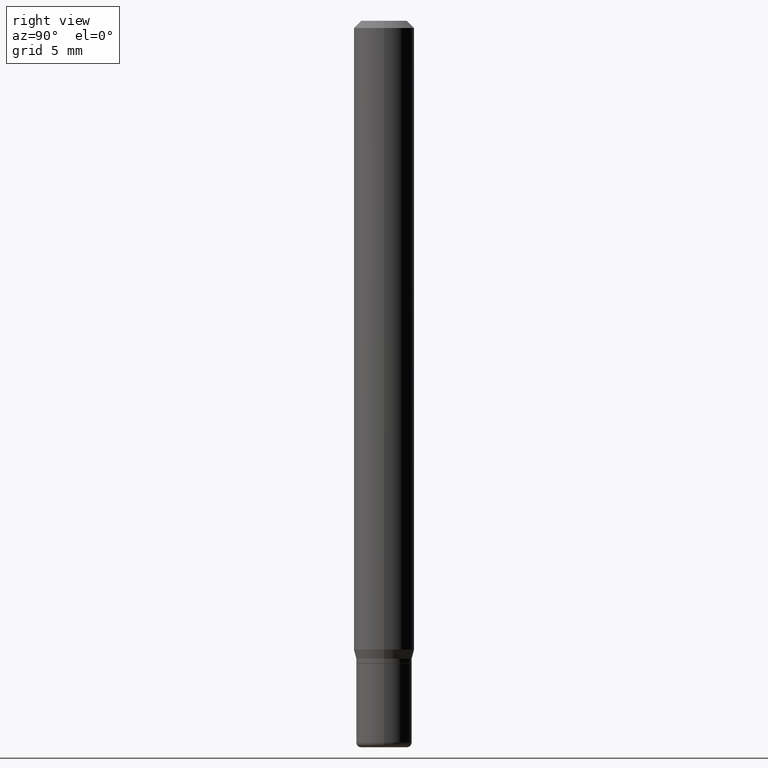
[diagram: clean part render]
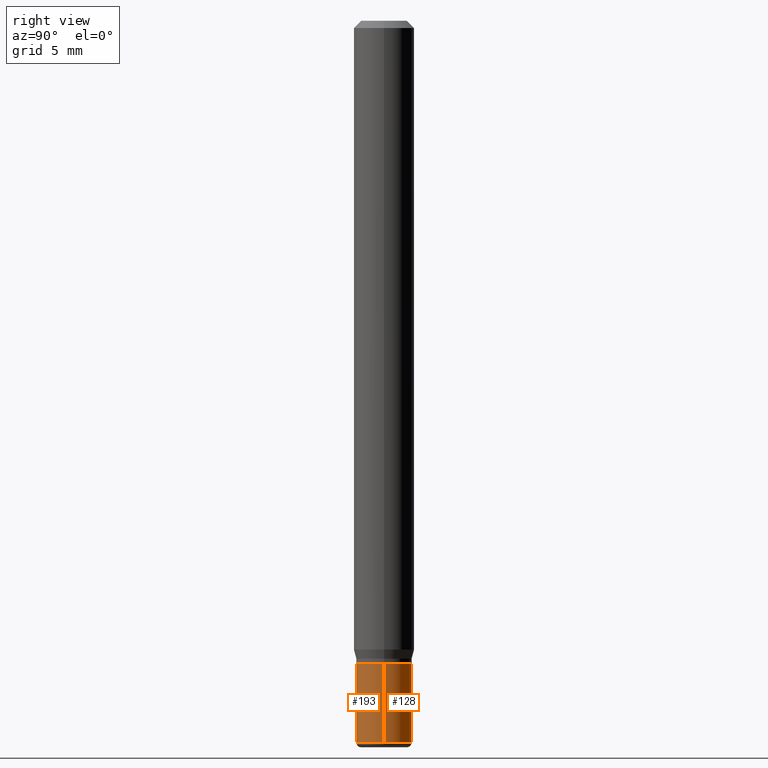
[diagram: same view with one multi-face feature highlighted, each face labeled with its STEP entity id]
A machine part, right view. The highlighted faces form ONE feature: a constant-radius fillet chain: 2 tangent blend faces with common blend radius 1.4605 mm. The faces share edges in the B-rep.
Their STEP definitions:
[1] entity #193 (Cylinder):
#15 = ORIENTED_EDGE ( 'NONE', *, *, #280, .F. ) ;
#17 = FACE_OUTER_BOUND ( 'NONE', #75, .T. ) ;
#31 = LINE ( 'NONE', #347, #239 ) ;
#44 = CIRCLE ( 'NONE', #176, 0.05750000000000000250 ) ;
#56 = DIRECTION ( 'NONE',  ( -2.445468806185136597E-29, 3.491481338843145583E-15, 1.000000000000000000 ) ) ;
#67 = DIRECTION ( 'NONE',  ( -2.445468806185136877E-29, 3.491481338843145188E-15, 1.000000000000000000 ) ) ;
#73 = ORIENTED_EDGE ( 'NONE', *, *, #504, .T. ) ;
#75 = EDGE_LOOP ( 'NONE', ( #109, #73, #368, #15 ) ) ;
#82 = DIRECTION ( 'NONE',  ( -2.445468806185136597E-29, 3.491481338843145583E-15, 1.000000000000000000 ) ) ;
#109 = ORIENTED_EDGE ( 'NONE', *, *, #379, .F. ) ;
#123 = CIRCLE ( 'NONE', #402, 0.05749999999999994699 ) ;
#129 = VERTEX_POINT ( 'NONE', #503 ) ;
#134 = CYLINDRICAL_SURFACE ( 'NONE', #392, 0.05749999999999997474 ) ;
#145 = LINE ( 'NONE', #389, #326 ) ;
#158 = VERTEX_POINT ( 'NONE', #373 ) ;
#176 = AXIS2_PLACEMENT_3D ( 'NONE', #428, #311, #226 ) ;
#193 = ADVANCED_FACE ( 'NONE', ( #17 ), #134, .T. ) ;
#215 = DIRECTION ( 'NONE',  ( 1.000000000000000000, -6.982962677686267499E-15, 4.876176775795936353E-29 ) ) ;
#226 = DIRECTION ( 'NONE',  ( 1.000000000000000000, -6.982962677686273810E-15, 0.000000000000000000 ) ) ;
#239 = VECTOR ( 'NONE', #67, 39.37007874015748143 ) ;
#259 = EDGE_CURVE ( 'NONE', #158, #129, #145, .T. ) ;
#280 = EDGE_CURVE ( 'NONE', #366, #129, #44, .T. ) ;
#286 = CARTESIAN_POINT ( 'NONE',  ( -0.05749999999999994699, -4.510062263033223973E-15, -1.490000000000000213 ) ) ;
#296 = CARTESIAN_POINT ( 'NONE',  ( 0.000000000000000000, 0.000000000000000000, 0.000000000000000000 ) ) ;
#305 = DIRECTION ( 'NONE',  ( -2.445468806185136877E-29, 3.491481338843145188E-15, 1.000000000000000000 ) ) ;
#311 = DIRECTION ( 'NONE',  ( -2.445468806185136597E-29, 3.491481338843145583E-15, 1.000000000000000000 ) ) ;
#326 = VECTOR ( 'NONE', #305, 39.37007874015748143 ) ;
#347 = CARTESIAN_POINT ( 'NONE',  ( -0.05749999999999997474, 4.085620730620574274E-16, -2.828387676896569661E-30 ) ) ;
#353 = CARTESIAN_POINT ( 'NONE',  ( 3.643748521215853910E-29, -5.202307194876288105E-15, -1.490000000000000213 ) ) ;
#366 = VERTEX_POINT ( 'NONE', #432 ) ;
#368 = ORIENTED_EDGE ( 'NONE', *, *, #259, .T. ) ;
#373 = CARTESIAN_POINT ( 'NONE',  ( 0.05749999999999994699, -5.603827548843247337E-15, -1.490000000000000213 ) ) ;
#379 = EDGE_CURVE ( 'NONE', #499, #366, #31, .T. ) ;
#389 = CARTESIAN_POINT ( 'NONE',  ( 0.05749999999999997474, -4.015203539669602175E-16, 2.803801646082662240E-30 ) ) ;
#392 = AXIS2_PLACEMENT_3D ( 'NONE', #296, #56, #215 ) ;
#402 = AXIS2_PLACEMENT_3D ( 'NONE', #353, #82, #487 ) ;
#428 = CARTESIAN_POINT ( 'NONE',  ( 3.246359840210769662E-29, -4.634941477314276569E-15, -1.327500000000000346 ) ) ;
#432 = CARTESIAN_POINT ( 'NONE',  ( -0.05750000000000000250, -4.510062263033223973E-15, -1.327500000000000346 ) ) ;
#487 = DIRECTION ( 'NONE',  ( 1.000000000000000000, -6.982962677686263555E-15, 0.000000000000000000 ) ) ;
#499 = VERTEX_POINT ( 'NONE', #286 ) ;
#503 = CARTESIAN_POINT ( 'NONE',  ( 0.05750000000000000250, -5.036461831281237378E-15, -1.327500000000000346 ) ) ;
#504 = EDGE_CURVE ( 'NONE', #499, #158, #123, .T. ) ;
[2] entity #128 (Cylinder):
#11 = CIRCLE ( 'NONE', #479, 0.05749999999999994699 ) ;
#19 = DIRECTION ( 'NONE',  ( -2.445468806185136597E-29, 3.491481338843145583E-15, 1.000000000000000000 ) ) ;
#31 = LINE ( 'NONE', #347, #239 ) ;
#41 = ORIENTED_EDGE ( 'NONE', *, *, #197, .T. ) ;
#61 = CARTESIAN_POINT ( 'NONE',  ( 0.000000000000000000, 0.000000000000000000, 0.000000000000000000 ) ) ;
#63 = FACE_OUTER_BOUND ( 'NONE', #256, .T. ) ;
#67 = DIRECTION ( 'NONE',  ( -2.445468806185136877E-29, 3.491481338843145188E-15, 1.000000000000000000 ) ) ;
#100 = AXIS2_PLACEMENT_3D ( 'NONE', #61, #416, #498 ) ;
#102 = CYLINDRICAL_SURFACE ( 'NONE', #100, 0.05749999999999997474 ) ;
#128 = ADVANCED_FACE ( 'NONE', ( #63 ), #102, .T. ) ;
#129 = VERTEX_POINT ( 'NONE', #503 ) ;
#136 = DIRECTION ( 'NONE',  ( -2.445468806185136597E-29, 3.491481338843145583E-15, 1.000000000000000000 ) ) ;
#145 = LINE ( 'NONE', #389, #326 ) ;
#158 = VERTEX_POINT ( 'NONE', #373 ) ;
#197 = EDGE_CURVE ( 'NONE', #158, #499, #11, .T. ) ;
#204 = EDGE_CURVE ( 'NONE', #129, #366, #264, .T. ) ;
#205 = ORIENTED_EDGE ( 'NONE', *, *, #204, .F. ) ;
#210 = ORIENTED_EDGE ( 'NONE', *, *, #259, .F. ) ;
#222 = DIRECTION ( 'NONE',  ( 1.000000000000000000, -6.982962677686273810E-15, 0.000000000000000000 ) ) ;
#239 = VECTOR ( 'NONE', #67, 39.37007874015748143 ) ;
#244 = ORIENTED_EDGE ( 'NONE', *, *, #379, .T. ) ;
#256 = EDGE_LOOP ( 'NONE', ( #41, #244, #205, #210 ) ) ;
#259 = EDGE_CURVE ( 'NONE', #158, #129, #145, .T. ) ;
#264 = CIRCLE ( 'NONE', #317, 0.05750000000000000250 ) ;
#286 = CARTESIAN_POINT ( 'NONE',  ( -0.05749999999999994699, -4.510062263033223973E-15, -1.490000000000000213 ) ) ;
#305 = DIRECTION ( 'NONE',  ( -2.445468806185136877E-29, 3.491481338843145188E-15, 1.000000000000000000 ) ) ;
#317 = AXIS2_PLACEMENT_3D ( 'NONE', #508, #136, #222 ) ;
#326 = VECTOR ( 'NONE', #305, 39.37007874015748143 ) ;
#347 = CARTESIAN_POINT ( 'NONE',  ( -0.05749999999999997474, 4.085620730620574274E-16, -2.828387676896569661E-30 ) ) ;
#366 = VERTEX_POINT ( 'NONE', #432 ) ;
#373 = CARTESIAN_POINT ( 'NONE',  ( 0.05749999999999994699, -5.603827548843247337E-15, -1.490000000000000213 ) ) ;
#377 = CARTESIAN_POINT ( 'NONE',  ( 3.643748521215853910E-29, -5.202307194876288105E-15, -1.490000000000000213 ) ) ;
#379 = EDGE_CURVE ( 'NONE', #499, #366, #31, .T. ) ;
#389 = CARTESIAN_POINT ( 'NONE',  ( 0.05749999999999997474, -4.015203539669602175E-16, 2.803801646082662240E-30 ) ) ;
#416 = DIRECTION ( 'NONE',  ( -2.445468806185136597E-29, 3.491481338843145583E-15, 1.000000000000000000 ) ) ;
#432 = CARTESIAN_POINT ( 'NONE',  ( -0.05750000000000000250, -4.510062263033223973E-15, -1.327500000000000346 ) ) ;
#463 = DIRECTION ( 'NONE',  ( 1.000000000000000000, -6.982962677686263555E-15, 0.000000000000000000 ) ) ;
#479 = AXIS2_PLACEMENT_3D ( 'NONE', #377, #19, #463 ) ;
#498 = DIRECTION ( 'NONE',  ( 1.000000000000000000, -6.982962677686267499E-15, 4.876176775795936353E-29 ) ) ;
#499 = VERTEX_POINT ( 'NONE', #286 ) ;
#503 = CARTESIAN_POINT ( 'NONE',  ( 0.05750000000000000250, -5.036461831281237378E-15, -1.327500000000000346 ) ) ;
#508 = CARTESIAN_POINT ( 'NONE',  ( 3.246359840210769662E-29, -4.634941477314276569E-15, -1.327500000000000346 ) ) ;